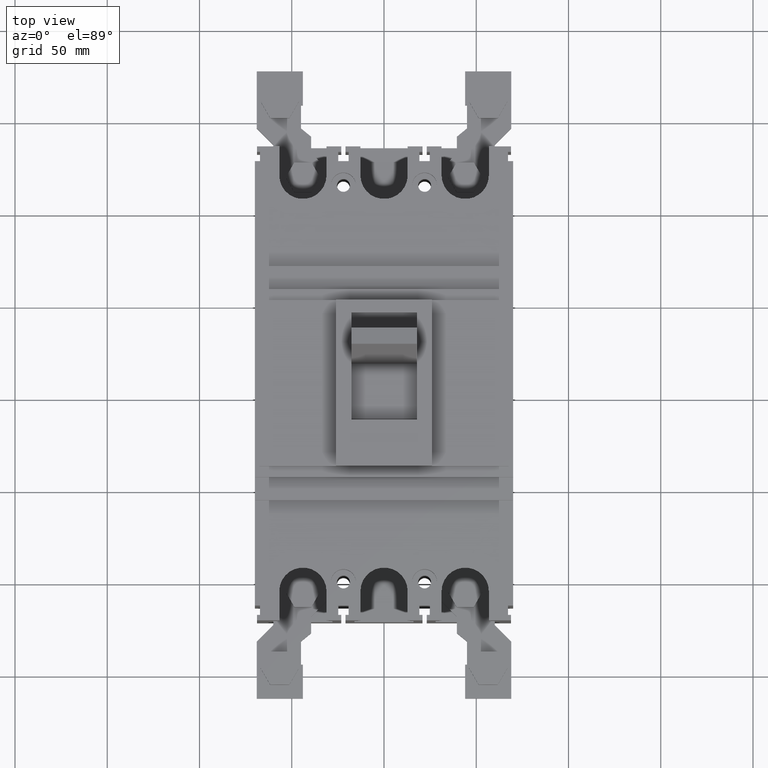
[diagram: clean part render]
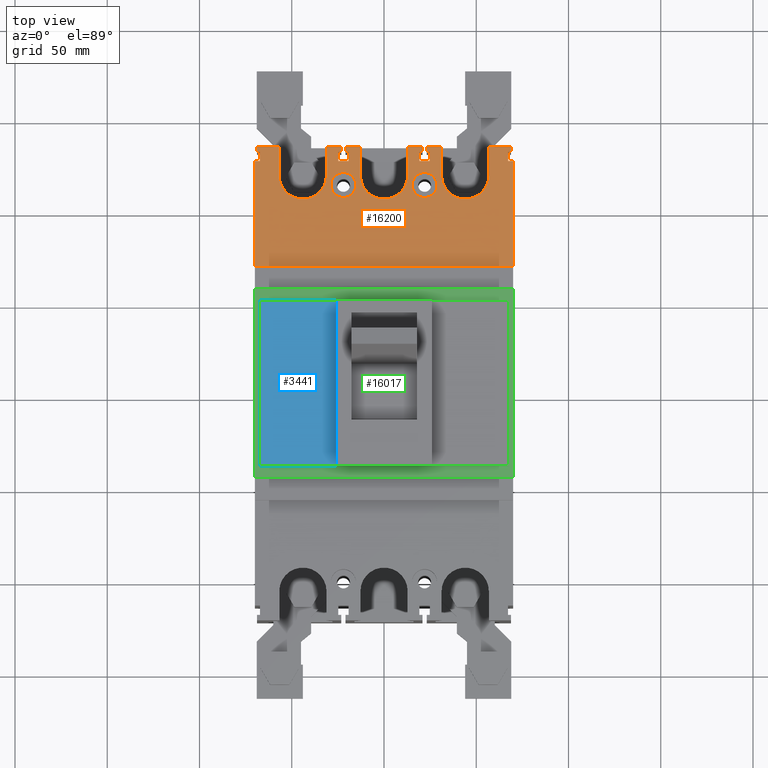
[diagram: same view with three faces highlighted in distinct colors, each labeled with its STEP entity id]
A machine part, top view with three faces highlighted in distinct colors.
Their STEP definitions:

[orange] entity #16200 — the highlighted planar face has unit normal (0, -0, 1).
#230 = VERTEX_POINT ( 'NONE', #14830 ) ;
#292 = DIRECTION ( 'NONE',  ( 1.000000000000000000, 0.0000000000000000000, -0.0000000000000000000 ) ) ;
#305 = CARTESIAN_POINT ( 'NONE',  ( -1.131889763779527547, 8.464566929133859219, 3.720472440944881942 ) ) ;
#312 = LINE ( 'NONE', #8776, #3745 ) ;
#461 = CARTESIAN_POINT ( 'NONE',  ( 0.9763779527559056648, 9.173228346456694382, 3.720472440944881942 ) ) ;
#473 = DIRECTION ( 'NONE',  ( 0.0000000000000000000, 1.000000000000000000, 0.0000000000000000000 ) ) ;
#483 = EDGE_CURVE ( 'NONE', #10848, #15824, #16338, .T. ) ;
#496 = CARTESIAN_POINT ( 'NONE',  ( 2.236220472440944906, 9.291338582677166613, 3.720472440944881942 ) ) ;
#570 = VERTEX_POINT ( 'NONE', #10501 ) ;
#604 = EDGE_CURVE ( 'NONE', #17830, #12579, #9730, .T. ) ;
#610 = CARTESIAN_POINT ( 'NONE',  ( 0.5039370078740157410, 9.291338582677166613, 3.720472440944881942 ) ) ;
#635 = CARTESIAN_POINT ( 'NONE',  ( 2.710629921259842590, 9.173228346456694382, 3.720472440944881942 ) ) ;
#645 = DIRECTION ( 'NONE',  ( 1.000000000000000000, 0.0000000000000000000, 0.0000000000000000000 ) ) ;
#805 = CARTESIAN_POINT ( 'NONE',  ( -0.9114173228346458266, 9.173228346456694382, 3.720472440944881942 ) ) ;
#824 = CIRCLE ( 'NONE', #1689, 0.2657480314960629642 ) ;
#846 = CARTESIAN_POINT ( 'NONE',  ( -0.9114173228346457156, 9.291338582677166613, 3.720472440944881942 ) ) ;
#875 = ORIENTED_EDGE ( 'NONE', *, *, #9297, .T. ) ;
#905 = VERTEX_POINT ( 'NONE', #5955 ) ;
#949 = DIRECTION ( 'NONE',  ( -0.0000000000000000000, -0.0000000000000000000, -1.000000000000000000 ) ) ;
#992 = LINE ( 'NONE', #3590, #12089 ) ;
#996 = VECTOR ( 'NONE', #7927, 39.37007874015748143 ) ;
#1054 = EDGE_CURVE ( 'NONE', #14556, #230, #4516, .T. ) ;
#1074 = ORIENTED_EDGE ( 'NONE', *, *, #4870, .F. ) ;
#1104 = DIRECTION ( 'NONE',  ( 1.000000000000000000, 0.0000000000000000000, -0.0000000000000000000 ) ) ;
#1145 = DIRECTION ( 'NONE',  ( 1.000000000000000000, 0.0000000000000000000, 0.0000000000000000000 ) ) ;
#1181 = CARTESIAN_POINT ( 'NONE',  ( 0.9763779527559056648, 8.976377952755905554, 3.720472440944881942 ) ) ;
#1294 = VECTOR ( 'NONE', #3884, 39.37007874015748143 ) ;
#1316 = DIRECTION ( 'NONE',  ( 1.000000000000000000, 0.0000000000000000000, -0.0000000000000000000 ) ) ;
#1371 = DIRECTION ( 'NONE',  ( 0.0000000000000000000, -1.000000000000000000, -0.0000000000000000000 ) ) ;
#1405 = CARTESIAN_POINT ( 'NONE',  ( -0.7559055118110233895, 8.976377952755905554, 3.720472440944881942 ) ) ;
#1409 = FACE_BOUND ( 'NONE', #4994, .T. ) ;
#1429 = VECTOR ( 'NONE', #9355, 39.37007874015748143 ) ;
#1491 = CARTESIAN_POINT ( 'NONE',  ( -1.228346456692913646, 9.291338582677166613, 3.720472440944881942 ) ) ;
#1495 = VERTEX_POINT ( 'NONE', #14561 ) ;
#1548 = EDGE_CURVE ( 'NONE', #15824, #12977, #8500, .T. ) ;
#1580 = CARTESIAN_POINT ( 'NONE',  ( -2.236220472440944462, 9.291338582677166613, 3.720472440944881942 ) ) ;
#1618 = FACE_OUTER_BOUND ( 'NONE', #3187, .T. ) ;
#1632 = VERTEX_POINT ( 'NONE', #305 ) ;
#1689 = AXIS2_PLACEMENT_3D ( 'NONE', #2485, #949, #1145 ) ;
#1705 = CARTESIAN_POINT ( 'NONE',  ( 2.755905511811024056, 9.173228346456694382, 3.720472440944881942 ) ) ;
#1722 = AXIS2_PLACEMENT_3D ( 'NONE', #4938, #6548, #7997 ) ;
#1800 = VECTOR ( 'NONE', #12755, 39.37007874015748143 ) ;
#1841 = ORIENTED_EDGE ( 'NONE', *, *, #10980, .T. ) ;
#1847 = EDGE_CURVE ( 'NONE', #17386, #6352, #7426, .T. ) ;
#1950 = EDGE_CURVE ( 'NONE', #3420, #4039, #7403, .T. ) ;
#2023 = CARTESIAN_POINT ( 'NONE',  ( -0.6003937007874016185, 8.464566929133859219, 3.720472440944881942 ) ) ;
#2031 = DIRECTION ( 'NONE',  ( 1.000000000000000000, 0.0000000000000000000, 0.0000000000000000000 ) ) ;
#2062 = ORIENTED_EDGE ( 'NONE', *, *, #1950, .T. ) ;
#2069 = CARTESIAN_POINT ( 'NONE',  ( -2.755905511811024056, 8.976377952755905554, 3.720472440944881942 ) ) ;
#2285 = CARTESIAN_POINT ( 'NONE',  ( -0.8208661417322835607, 9.173228346456694382, 3.720472440944881942 ) ) ;
#2344 = LINE ( 'NONE', #1181, #15461 ) ;
#2485 = CARTESIAN_POINT ( 'NONE',  ( -0.8661417322834645827, 8.464566929133859219, 3.720472440944881942 ) ) ;
#2747 = VECTOR ( 'NONE', #1104, 39.37007874015748143 ) ;
#2761 = DIRECTION ( 'NONE',  ( -0.0000000000000000000, -1.000000000000000000, -0.0000000000000000000 ) ) ;
#2965 = ORIENTED_EDGE ( 'NONE', *, *, #7937, .F. ) ;
#3010 = AXIS2_PLACEMENT_3D ( 'NONE', #9157, #6202, #2031 ) ;
#3187 = EDGE_LOOP ( 'NONE', ( #12069, #17454, #13082, #5182, #7128, #12037, #12455, #9106, #6131, #14357, #14523, #7655, #10458, #6532, #875, #15857, #7147, #16023, #9917, #2965, #9239, #1841, #16272, #3306, #11792, #11055, #13236, #1074, #7237, #3235, #13133, #10346, #18014, #2062, #6110, #15977, #16970, #7151, #9461, #12759 ) ) ;
#3197 = CARTESIAN_POINT ( 'NONE',  ( 2.755905511811024056, 9.173228346456694382, 3.720472440944881942 ) ) ;
#3235 = ORIENTED_EDGE ( 'NONE', *, *, #13540, .T. ) ;
#3306 = ORIENTED_EDGE ( 'NONE', *, *, #13376, .T. ) ;
#3402 = DIRECTION ( 'NONE',  ( -0.0000000000000000000, -0.0000000000000000000, -1.000000000000000000 ) ) ;
#3420 = VERTEX_POINT ( 'NONE', #9702 ) ;
#3488 = LINE ( 'NONE', #8387, #6599 ) ;
#3590 = CARTESIAN_POINT ( 'NONE',  ( 0.8208661417322835607, 9.291338582677166613, 3.720472440944881942 ) ) ;
#3616 = CIRCLE ( 'NONE', #16385, 0.2657480314960629642 ) ;
#3743 = VECTOR ( 'NONE', #10941, 39.37007874015748143 ) ;
#3745 = VECTOR ( 'NONE', #15727, 39.37007874015748143 ) ;
#3884 = DIRECTION ( 'NONE',  ( 1.000000000000000000, 0.0000000000000000000, -0.0000000000000000000 ) ) ;
#3916 = EDGE_CURVE ( 'NONE', #8360, #10196, #3616, .T. ) ;
#3925 = VECTOR ( 'NONE', #7179, 39.37007874015748143 ) ;
#3980 = DIRECTION ( 'NONE',  ( 1.000000000000000000, 0.0000000000000000000, 0.0000000000000000000 ) ) ;
#4013 = DIRECTION ( 'NONE',  ( -2.368475785867000094E-15, -1.000000000000000000, -0.0000000000000000000 ) ) ;
#4023 = VERTEX_POINT ( 'NONE', #5947 ) ;
#4039 = VERTEX_POINT ( 'NONE', #5819 ) ;
#4045 = DIRECTION ( 'NONE',  ( -0.0000000000000000000, -0.0000000000000000000, -1.000000000000000000 ) ) ;
#4087 = CARTESIAN_POINT ( 'NONE',  ( 0.7559055118110236116, 8.976377952755905554, 3.720472440944881942 ) ) ;
#4122 = EDGE_CURVE ( 'NONE', #8123, #10848, #13536, .T. ) ;
#4198 = CARTESIAN_POINT ( 'NONE',  ( -0.9763779527559056648, 8.976377952755905554, 3.720472440944881942 ) ) ;
#4319 = CARTESIAN_POINT ( 'NONE',  ( 2.755905511811024056, 9.173228346456694382, 3.720472440944881942 ) ) ;
#4439 = EDGE_CURVE ( 'NONE', #8226, #11257, #16043, .T. ) ;
#4516 = LINE ( 'NONE', #4760, #17621 ) ;
#4544 = VERTEX_POINT ( 'NONE', #635 ) ;
#4566 = CARTESIAN_POINT ( 'NONE',  ( -0.9763779527559056648, 9.173228346456694382, 3.720472440944881942 ) ) ;
#4575 = CARTESIAN_POINT ( 'NONE',  ( -2.755905511811024056, 6.732283464566929609, 3.720472440944881942 ) ) ;
#4600 = DIRECTION ( 'NONE',  ( 1.000000000000000000, 0.0000000000000000000, -0.0000000000000000000 ) ) ;
#4653 = AXIS2_PLACEMENT_3D ( 'NONE', #11570, #17716, #14725 ) ;
#4760 = CARTESIAN_POINT ( 'NONE',  ( -0.5039370078740159631, 9.291338582677166613, 3.720472440944881942 ) ) ;
#4870 = EDGE_CURVE ( 'NONE', #14245, #9754, #14381, .T. ) ;
#4880 = EDGE_CURVE ( 'NONE', #12579, #11005, #17108, .T. ) ;
#4938 = CARTESIAN_POINT ( 'NONE',  ( 2.755905511811024056, 9.291338582677166613, 3.720472440944881942 ) ) ;
#4957 = LINE ( 'NONE', #4566, #12167 ) ;
#4994 = EDGE_LOOP ( 'NONE', ( #6069, #17924 ) ) ;
#5012 = EDGE_CURVE ( 'NONE', #10196, #8360, #7135, .T. ) ;
#5031 = DIRECTION ( 'NONE',  ( 0.0000000000000000000, 1.000000000000000000, -0.0000000000000000000 ) ) ;
#5139 = CARTESIAN_POINT ( 'NONE',  ( 2.645669291338583307, 9.173228346456694382, 3.720472440944881942 ) ) ;
#5146 = VECTOR ( 'NONE', #17202, 39.37007874015748143 ) ;
#5182 = ORIENTED_EDGE ( 'NONE', *, *, #16354, .F. ) ;
#5232 = EDGE_CURVE ( 'NONE', #8226, #12118, #12727, .T. ) ;
#5323 = CARTESIAN_POINT ( 'NONE',  ( 2.755905511811024056, 8.976377952755905554, 3.720472440944881942 ) ) ;
#5372 = EDGE_CURVE ( 'NONE', #16078, #8123, #2344, .T. ) ;
#5515 = VECTOR ( 'NONE', #5774, 39.37007874015748143 ) ;
#5601 = CARTESIAN_POINT ( 'NONE',  ( 1.228346456692913424, 9.291338582677166613, 3.720472440944881942 ) ) ;
#5616 = VECTOR ( 'NONE', #5031, 39.37007874015748143 ) ;
#5645 = DIRECTION ( 'NONE',  ( 1.000000000000000000, 0.0000000000000000000, -0.0000000000000000000 ) ) ;
#5653 = VERTEX_POINT ( 'NONE', #11592 ) ;
#5669 = CARTESIAN_POINT ( 'NONE',  ( 2.755905511811024056, 9.291338582677166613, 3.720472440944881942 ) ) ;
#5699 = EDGE_CURVE ( 'NONE', #9936, #5653, #11203, .T. ) ;
#5767 = CARTESIAN_POINT ( 'NONE',  ( 2.755905511811024056, 9.291338582677166613, 3.720472440944881942 ) ) ;
#5774 = DIRECTION ( 'NONE',  ( -1.000000000000000000, -0.0000000000000000000, -0.0000000000000000000 ) ) ;
#5797 = CARTESIAN_POINT ( 'NONE',  ( 2.645669291338583307, 8.976377952755905554, 3.720472440944881942 ) ) ;
#5819 = CARTESIAN_POINT ( 'NONE',  ( -2.645669291338583307, 9.173228346456694382, 3.720472440944881942 ) ) ;
#5867 = DIRECTION ( 'NONE',  ( -0.0000000000000000000, -1.000000000000000000, -0.0000000000000000000 ) ) ;
#5947 = CARTESIAN_POINT ( 'NONE',  ( 2.645669291338583307, 9.173228346456694382, 3.720472440944881942 ) ) ;
#5952 = CARTESIAN_POINT ( 'NONE',  ( 0.5039370078740157410, 8.669291338582677753, 3.720472440944881942 ) ) ;
#5955 = CARTESIAN_POINT ( 'NONE',  ( 1.228346456692913424, 9.291338582677166613, 3.720472440944881942 ) ) ;
#5973 = DIRECTION ( 'NONE',  ( 1.000000000000000000, 0.0000000000000000000, -0.0000000000000000000 ) ) ;
#5995 = DIRECTION ( 'NONE',  ( 0.0000000000000000000, 1.000000000000000000, -0.0000000000000000000 ) ) ;
#6030 = VECTOR ( 'NONE', #4600, 39.37007874015748143 ) ;
#6069 = ORIENTED_EDGE ( 'NONE', *, *, #15319, .T. ) ;
#6110 = ORIENTED_EDGE ( 'NONE', *, *, #9847, .T. ) ;
#6131 = ORIENTED_EDGE ( 'NONE', *, *, #9448, .T. ) ;
#6202 = DIRECTION ( 'NONE',  ( -0.0000000000000000000, -0.0000000000000000000, -1.000000000000000000 ) ) ;
#6227 = DIRECTION ( 'NONE',  ( -0.0000000000000000000, -0.0000000000000000000, -1.000000000000000000 ) ) ;
#6326 = AXIS2_PLACEMENT_3D ( 'NONE', #13672, #4045, #3980 ) ;
#6352 = VERTEX_POINT ( 'NONE', #14099 ) ;
#6355 = ORIENTED_EDGE ( 'NONE', *, *, #3916, .T. ) ;
#6532 = ORIENTED_EDGE ( 'NONE', *, *, #1548, .T. ) ;
#6548 = DIRECTION ( 'NONE',  ( 0.0000000000000000000, -0.0000000000000000000, 1.000000000000000000 ) ) ;
#6599 = VECTOR ( 'NONE', #17517, 39.37007874015748143 ) ;
#6639 = CARTESIAN_POINT ( 'NONE',  ( 0.9114173228346457156, 9.173228346456694382, 3.720472440944881942 ) ) ;
#6709 = CARTESIAN_POINT ( 'NONE',  ( 0.5039370078740157410, 9.291338582677166613, 3.720472440944881942 ) ) ;
#6767 = EDGE_CURVE ( 'NONE', #18540, #16078, #17613, .T. ) ;
#6843 = CARTESIAN_POINT ( 'NONE',  ( 0.8661417322834645827, 8.464566929133859219, 3.720472440944881942 ) ) ;
#6861 = EDGE_CURVE ( 'NONE', #570, #14468, #8299, .T. ) ;
#6920 = VECTOR ( 'NONE', #18508, 39.37007874015748143 ) ;
#6932 = CARTESIAN_POINT ( 'NONE',  ( -1.228346456692913646, 9.291338582677166613, 3.720472440944881942 ) ) ;
#6960 = VECTOR ( 'NONE', #4013, 39.37007874015748143 ) ;
#7128 = ORIENTED_EDGE ( 'NONE', *, *, #15152, .T. ) ;
#7135 = CIRCLE ( 'NONE', #4653, 0.2657480314960629642 ) ;
#7147 = ORIENTED_EDGE ( 'NONE', *, *, #5232, .T. ) ;
#7151 = ORIENTED_EDGE ( 'NONE', *, *, #14756, .F. ) ;
#7179 = DIRECTION ( 'NONE',  ( 1.000000000000000000, 0.0000000000000000000, -0.0000000000000000000 ) ) ;
#7223 = CIRCLE ( 'NONE', #14888, 0.2657480314960629642 ) ;
#7237 = ORIENTED_EDGE ( 'NONE', *, *, #14979, .T. ) ;
#7263 = CARTESIAN_POINT ( 'NONE',  ( -2.645669291338583307, 8.976377952755905554, 3.720472440944881942 ) ) ;
#7269 = CARTESIAN_POINT ( 'NONE',  ( 0.7559055118110233895, 8.976377952755905554, 3.720472440944881942 ) ) ;
#7403 = LINE ( 'NONE', #4319, #5146 ) ;
#7407 = EDGE_CURVE ( 'NONE', #16545, #18524, #312, .T. ) ;
#7426 = LINE ( 'NONE', #2285, #6960 ) ;
#7486 = CARTESIAN_POINT ( 'NONE',  ( -0.9114173228346458266, 9.291338582677166613, 3.720472440944881942 ) ) ;
#7495 = LINE ( 'NONE', #9551, #2747 ) ;
#7521 = CARTESIAN_POINT ( 'NONE',  ( -2.755905511811024056, 6.732283464566929609, 3.720472440944881942 ) ) ;
#7594 = VECTOR ( 'NONE', #5645, 39.37007874015748143 ) ;
#7655 = ORIENTED_EDGE ( 'NONE', *, *, #4122, .T. ) ;
#7673 = CARTESIAN_POINT ( 'NONE',  ( -2.645669291338583307, 8.976377952755905554, 3.720472440944881942 ) ) ;
#7734 = DIRECTION ( 'NONE',  ( 0.0000000000000000000, -1.000000000000000000, -0.0000000000000000000 ) ) ;
#7818 = CARTESIAN_POINT ( 'NONE',  ( -0.8661417322834645827, 8.464566929133859219, 3.720472440944881942 ) ) ;
#7864 = VECTOR ( 'NONE', #1316, 39.37007874015748143 ) ;
#7899 = VERTEX_POINT ( 'NONE', #5797 ) ;
#7927 = DIRECTION ( 'NONE',  ( 0.0000000000000000000, -1.000000000000000000, -0.0000000000000000000 ) ) ;
#7937 = EDGE_CURVE ( 'NONE', #17386, #230, #17943, .T. ) ;
#7997 = DIRECTION ( 'NONE',  ( 1.000000000000000000, 0.0000000000000000000, -0.0000000000000000000 ) ) ;
#8065 = VERTEX_POINT ( 'NONE', #10492 ) ;
#8108 = EDGE_CURVE ( 'NONE', #12118, #14556, #17167, .T. ) ;
#8123 = VERTEX_POINT ( 'NONE', #16651 ) ;
#8132 = VERTEX_POINT ( 'NONE', #15123 ) ;
#8226 = VERTEX_POINT ( 'NONE', #6709 ) ;
#8273 = VECTOR ( 'NONE', #15809, 39.37007874015748143 ) ;
#8299 = LINE ( 'NONE', #14273, #7864 ) ;
#8337 = VECTOR ( 'NONE', #5973, 39.37007874015748143 ) ;
#8360 = VERTEX_POINT ( 'NONE', #18563 ) ;
#8361 = VERTEX_POINT ( 'NONE', #8414 ) ;
#8387 = CARTESIAN_POINT ( 'NONE',  ( 2.710629921259842590, 9.291338582677166613, 3.720472440944881942 ) ) ;
#8414 = CARTESIAN_POINT ( 'NONE',  ( -1.228346456692913424, 8.669291338582677753, 3.720472440944881942 ) ) ;
#8430 = DIRECTION ( 'NONE',  ( 0.0000000000000000000, 1.000000000000000000, 0.0000000000000000000 ) ) ;
#8444 = EDGE_CURVE ( 'NONE', #1495, #14832, #9191, .T. ) ;
#8445 = DIRECTION ( 'NONE',  ( -0.0000000000000000000, -1.000000000000000000, -0.0000000000000000000 ) ) ;
#8474 = CARTESIAN_POINT ( 'NONE',  ( 2.755905511811024056, 9.291338582677166613, 3.720472440944881942 ) ) ;
#8480 = VERTEX_POINT ( 'NONE', #14347 ) ;
#8500 = LINE ( 'NONE', #8994, #6030 ) ;
#8600 = CARTESIAN_POINT ( 'NONE',  ( -2.755905511811024056, 0.0000000000000000000, 3.720472440944881942 ) ) ;
#8601 = VERTEX_POINT ( 'NONE', #11581 ) ;
#8776 = CARTESIAN_POINT ( 'NONE',  ( -0.7559055118110236116, 8.976377952755905554, 3.720472440944881942 ) ) ;
#8823 = VECTOR ( 'NONE', #13124, 39.37007874015748143 ) ;
#8844 = VECTOR ( 'NONE', #16305, 39.37007874015748143 ) ;
#8900 = EDGE_CURVE ( 'NONE', #16442, #14399, #15953, .T. ) ;
#8994 = CARTESIAN_POINT ( 'NONE',  ( 2.755905511811024056, 9.173228346456694382, 3.720472440944881942 ) ) ;
#9011 = DIRECTION ( 'NONE',  ( 0.0000000000000000000, 1.000000000000000000, -0.0000000000000000000 ) ) ;
#9106 = ORIENTED_EDGE ( 'NONE', *, *, #18486, .F. ) ;
#9157 = CARTESIAN_POINT ( 'NONE',  ( -1.732283464566929165, 8.669291338582677753, 3.720472440944881942 ) ) ;
#9191 = LINE ( 'NONE', #8474, #6920 ) ;
#9203 = LINE ( 'NONE', #13832, #16006 ) ;
#9236 = LINE ( 'NONE', #10442, #16718 ) ;
#9239 = ORIENTED_EDGE ( 'NONE', *, *, #1847, .T. ) ;
#9297 = EDGE_CURVE ( 'NONE', #12977, #11257, #992, .T. ) ;
#9355 = DIRECTION ( 'NONE',  ( 2.368475785867000094E-15, -1.000000000000000000, -0.0000000000000000000 ) ) ;
#9388 = VECTOR ( 'NONE', #17468, 39.37007874015748143 ) ;
#9448 = EDGE_CURVE ( 'NONE', #8065, #18540, #18181, .T. ) ;
#9461 = ORIENTED_EDGE ( 'NONE', *, *, #5699, .F. ) ;
#9551 = CARTESIAN_POINT ( 'NONE',  ( 2.755905511811024056, 9.291338582677166613, 3.720472440944881942 ) ) ;
#9702 = CARTESIAN_POINT ( 'NONE',  ( -2.710629921259842590, 9.173228346456694382, 3.720472440944881942 ) ) ;
#9730 = LINE ( 'NONE', #2069, #8844 ) ;
#9754 = VERTEX_POINT ( 'NONE', #7486 ) ;
#9842 = VECTOR ( 'NONE', #2761, 39.37007874015748143 ) ;
#9847 = EDGE_CURVE ( 'NONE', #4039, #17830, #16591, .T. ) ;
#9889 = VERTEX_POINT ( 'NONE', #496 ) ;
#9917 = ORIENTED_EDGE ( 'NONE', *, *, #1054, .T. ) ;
#9936 = VERTEX_POINT ( 'NONE', #5323 ) ;
#10196 = VERTEX_POINT ( 'NONE', #14029 ) ;
#10199 = CARTESIAN_POINT ( 'NONE',  ( 0.7559055118110236116, 9.173228346456694382, 3.720472440944881942 ) ) ;
#10224 = LINE ( 'NONE', #3197, #11831 ) ;
#10226 = VECTOR ( 'NONE', #7734, 39.37007874015748143 ) ;
#10329 = DIRECTION ( 'NONE',  ( -1.000000000000000000, -0.0000000000000000000, -0.0000000000000000000 ) ) ;
#10338 = LINE ( 'NONE', #5139, #5616 ) ;
#10346 = ORIENTED_EDGE ( 'NONE', *, *, #8444, .F. ) ;
#10425 = CARTESIAN_POINT ( 'NONE',  ( -0.7559055118110233895, 9.173228346456694382, 3.720472440944881942 ) ) ;
#10442 = CARTESIAN_POINT ( 'NONE',  ( 2.645669291338583307, 8.976377952755905554, 3.720472440944881942 ) ) ;
#10458 = ORIENTED_EDGE ( 'NONE', *, *, #483, .T. ) ;
#10492 = CARTESIAN_POINT ( 'NONE',  ( 0.9114173228346456046, 9.291338582677166613, 3.720472440944881942 ) ) ;
#10501 = CARTESIAN_POINT ( 'NONE',  ( -0.9763779527559056648, 9.173228346456694382, 3.720472440944881942 ) ) ;
#10515 = VECTOR ( 'NONE', #11494, 39.37007874015748143 ) ;
#10679 = DIRECTION ( 'NONE',  ( 1.000000000000000000, 0.0000000000000000000, 0.0000000000000000000 ) ) ;
#10686 = VECTOR ( 'NONE', #5867, 39.37007874015748143 ) ;
#10848 = VERTEX_POINT ( 'NONE', #7269 ) ;
#10872 = CARTESIAN_POINT ( 'NONE',  ( 0.8208661417322835607, 9.291338582677166613, 3.720472440944881942 ) ) ;
#10941 = DIRECTION ( 'NONE',  ( 0.0000000000000000000, 1.000000000000000000, -0.0000000000000000000 ) ) ;
#10980 = EDGE_CURVE ( 'NONE', #6352, #16545, #13102, .T. ) ;
#11005 = VERTEX_POINT ( 'NONE', #7521 ) ;
#11021 = CARTESIAN_POINT ( 'NONE',  ( 0.7559055118110233895, 9.173228346456694382, 3.720472440944881942 ) ) ;
#11055 = ORIENTED_EDGE ( 'NONE', *, *, #6861, .T. ) ;
#11113 = CIRCLE ( 'NONE', #3010, 0.5039370078740157410 ) ;
#11203 = LINE ( 'NONE', #18849, #9842 ) ;
#11235 = CARTESIAN_POINT ( 'NONE',  ( -0.5039370078740157410, 8.669291338582677753, 3.720472440944881942 ) ) ;
#11257 = VERTEX_POINT ( 'NONE', #10872 ) ;
#11264 = DIRECTION ( 'NONE',  ( -0.0000000000000000000, -0.0000000000000000000, -1.000000000000000000 ) ) ;
#11371 = VECTOR ( 'NONE', #12611, 39.37007874015748143 ) ;
#11494 = DIRECTION ( 'NONE',  ( -0.0000000000000000000, -1.000000000000000000, -0.0000000000000000000 ) ) ;
#11570 = CARTESIAN_POINT ( 'NONE',  ( 0.8661417322834645827, 8.464566929133859219, 3.720472440944881942 ) ) ;
#11581 = CARTESIAN_POINT ( 'NONE',  ( 2.710629921259842590, 9.291338582677166613, 3.720472440944881942 ) ) ;
#11592 = CARTESIAN_POINT ( 'NONE',  ( 2.755905511811024056, 6.732283464566929609, 3.720472440944881942 ) ) ;
#11644 = CARTESIAN_POINT ( 'NONE',  ( 0.9114173228346458266, 9.173228346456694382, 3.720472440944881942 ) ) ;
#11740 = CARTESIAN_POINT ( 'NONE',  ( 2.236220472440944906, 9.291338582677166613, 3.720472440944881942 ) ) ;
#11792 = ORIENTED_EDGE ( 'NONE', *, *, #17793, .T. ) ;
#11831 = VECTOR ( 'NONE', #292, 39.37007874015748143 ) ;
#11879 = LINE ( 'NONE', #846, #3743 ) ;
#12037 = ORIENTED_EDGE ( 'NONE', *, *, #8900, .T. ) ;
#12069 = ORIENTED_EDGE ( 'NONE', *, *, #14274, .T. ) ;
#12089 = VECTOR ( 'NONE', #16362, 39.37007874015748143 ) ;
#12118 = VERTEX_POINT ( 'NONE', #5952 ) ;
#12167 = VECTOR ( 'NONE', #5995, 39.37007874015748143 ) ;
#12297 = LINE ( 'NONE', #16649, #996 ) ;
#12323 = LINE ( 'NONE', #5669, #7594 ) ;
#12343 = LINE ( 'NONE', #4575, #9388 ) ;
#12413 = EDGE_CURVE ( 'NONE', #14468, #9754, #11879, .T. ) ;
#12455 = ORIENTED_EDGE ( 'NONE', *, *, #18224, .T. ) ;
#12536 = VECTOR ( 'NONE', #8445, 39.37007874015748143 ) ;
#12579 = VERTEX_POINT ( 'NONE', #15336 ) ;
#12611 = DIRECTION ( 'NONE',  ( -0.0000000000000000000, -1.000000000000000000, -0.0000000000000000000 ) ) ;
#12712 = LINE ( 'NONE', #4198, #5515 ) ;
#12727 = LINE ( 'NONE', #610, #11371 ) ;
#12753 = VECTOR ( 'NONE', #8430, 39.37007874015748143 ) ;
#12755 = DIRECTION ( 'NONE',  ( -1.000000000000000000, -0.0000000000000000000, -0.0000000000000000000 ) ) ;
#12759 = ORIENTED_EDGE ( 'NONE', *, *, #14119, .T. ) ;
#12977 = VERTEX_POINT ( 'NONE', #14750 ) ;
#13082 = ORIENTED_EDGE ( 'NONE', *, *, #15918, .T. ) ;
#13102 = LINE ( 'NONE', #1705, #8823 ) ;
#13121 = EDGE_CURVE ( 'NONE', #1495, #3420, #12297, .T. ) ;
#13124 = DIRECTION ( 'NONE',  ( 1.000000000000000000, 0.0000000000000000000, -0.0000000000000000000 ) ) ;
#13133 = ORIENTED_EDGE ( 'NONE', *, *, #16832, .T. ) ;
#13236 = ORIENTED_EDGE ( 'NONE', *, *, #12413, .T. ) ;
#13376 = EDGE_CURVE ( 'NONE', #18524, #8132, #12712, .T. ) ;
#13397 = ORIENTED_EDGE ( 'NONE', *, *, #5012, .T. ) ;
#13472 = EDGE_CURVE ( 'NONE', #4023, #4544, #10224, .T. ) ;
#13536 = LINE ( 'NONE', #4087, #1800 ) ;
#13540 = EDGE_CURVE ( 'NONE', #8361, #8480, #11113, .T. ) ;
#13630 = CARTESIAN_POINT ( 'NONE',  ( -0.8208661417322835607, 9.291338582677166613, 3.720472440944881942 ) ) ;
#13672 = CARTESIAN_POINT ( 'NONE',  ( 1.732283464566929165, 8.669291338582677753, 3.720472440944881942 ) ) ;
#13832 = CARTESIAN_POINT ( 'NONE',  ( -2.236220472440944462, 9.291338582677166613, 3.720472440944881942 ) ) ;
#13893 = DIRECTION ( 'NONE',  ( 0.0000000000000000000, 1.000000000000000000, 0.0000000000000000000 ) ) ;
#14008 = CARTESIAN_POINT ( 'NONE',  ( 1.228346456692913424, 8.669291338582677753, 3.720472440944881942 ) ) ;
#14020 = VECTOR ( 'NONE', #9011, 39.37007874015748143 ) ;
#14029 = CARTESIAN_POINT ( 'NONE',  ( 1.131889763779527547, 8.464566929133859219, 3.720472440944881942 ) ) ;
#14099 = CARTESIAN_POINT ( 'NONE',  ( -0.8208661417322836718, 9.173228346456694382, 3.720472440944881942 ) ) ;
#14119 = EDGE_CURVE ( 'NONE', #9936, #7899, #9236, .T. ) ;
#14245 = VERTEX_POINT ( 'NONE', #1491 ) ;
#14273 = CARTESIAN_POINT ( 'NONE',  ( 2.755905511811024056, 9.173228346456694382, 3.720472440944881942 ) ) ;
#14274 = EDGE_CURVE ( 'NONE', #7899, #4023, #10338, .T. ) ;
#14347 = CARTESIAN_POINT ( 'NONE',  ( -2.236220472440944462, 8.669291338582677753, 3.720472440944881942 ) ) ;
#14357 = ORIENTED_EDGE ( 'NONE', *, *, #6767, .T. ) ;
#14368 = CARTESIAN_POINT ( 'NONE',  ( 2.755905511811024056, 9.291338582677166613, 3.720472440944881942 ) ) ;
#14381 = LINE ( 'NONE', #5767, #8273 ) ;
#14399 = VERTEX_POINT ( 'NONE', #14008 ) ;
#14468 = VERTEX_POINT ( 'NONE', #805 ) ;
#14523 = ORIENTED_EDGE ( 'NONE', *, *, #5372, .T. ) ;
#14556 = VERTEX_POINT ( 'NONE', #11235 ) ;
#14561 = CARTESIAN_POINT ( 'NONE',  ( -2.710629921259842590, 9.291338582677166613, 3.720472440944881942 ) ) ;
#14573 = LINE ( 'NONE', #11740, #10686 ) ;
#14725 = DIRECTION ( 'NONE',  ( 1.000000000000000000, 0.0000000000000000000, 0.0000000000000000000 ) ) ;
#14750 = CARTESIAN_POINT ( 'NONE',  ( 0.8208661417322835607, 9.173228346456694382, 3.720472440944881942 ) ) ;
#14756 = EDGE_CURVE ( 'NONE', #5653, #11005, #12343, .T. ) ;
#14775 = DIRECTION ( 'NONE',  ( 1.000000000000000000, 0.0000000000000000000, 0.0000000000000000000 ) ) ;
#14830 = CARTESIAN_POINT ( 'NONE',  ( -0.5039370078740159631, 9.291338582677166613, 3.720472440944881942 ) ) ;
#14832 = VERTEX_POINT ( 'NONE', #1580 ) ;
#14871 = AXIS2_PLACEMENT_3D ( 'NONE', #15002, #3402, #645 ) ;
#14888 = AXIS2_PLACEMENT_3D ( 'NONE', #7818, #6227, #10679 ) ;
#14889 = VERTEX_POINT ( 'NONE', #2023 ) ;
#14951 = FACE_BOUND ( 'NONE', #16981, .T. ) ;
#14979 = EDGE_CURVE ( 'NONE', #14245, #8361, #18460, .T. ) ;
#15002 = CARTESIAN_POINT ( 'NONE',  ( 0.0000000000000000000, 8.669291338582677753, 3.720472440944881942 ) ) ;
#15123 = CARTESIAN_POINT ( 'NONE',  ( -0.9763779527559056648, 8.976377952755905554, 3.720472440944881942 ) ) ;
#15152 = EDGE_CURVE ( 'NONE', #9889, #16442, #14573, .T. ) ;
#15319 = EDGE_CURVE ( 'NONE', #14889, #1632, #7223, .T. ) ;
#15336 = CARTESIAN_POINT ( 'NONE',  ( -2.755905511811024056, 8.976377952755905554, 3.720472440944881942 ) ) ;
#15461 = VECTOR ( 'NONE', #1371, 39.37007874015748143 ) ;
#15727 = DIRECTION ( 'NONE',  ( 0.0000000000000000000, -1.000000000000000000, -0.0000000000000000000 ) ) ;
#15809 = DIRECTION ( 'NONE',  ( 1.000000000000000000, 0.0000000000000000000, -0.0000000000000000000 ) ) ;
#15824 = VERTEX_POINT ( 'NONE', #11021 ) ;
#15857 = ORIENTED_EDGE ( 'NONE', *, *, #4439, .F. ) ;
#15918 = EDGE_CURVE ( 'NONE', #4544, #8601, #3488, .T. ) ;
#15953 = CIRCLE ( 'NONE', #6326, 0.5039370078740157410 ) ;
#15977 = ORIENTED_EDGE ( 'NONE', *, *, #604, .T. ) ;
#16006 = VECTOR ( 'NONE', #13893, 39.37007874015748143 ) ;
#16023 = ORIENTED_EDGE ( 'NONE', *, *, #8108, .T. ) ;
#16043 = LINE ( 'NONE', #17680, #8337 ) ;
#16078 = VERTEX_POINT ( 'NONE', #461 ) ;
#16200 = ADVANCED_FACE ( 'NONE', ( #1409, #14951, #1618 ), #16503, .T. ) ;
#16272 = ORIENTED_EDGE ( 'NONE', *, *, #7407, .T. ) ;
#16305 = DIRECTION ( 'NONE',  ( -1.000000000000000000, -0.0000000000000000000, -0.0000000000000000000 ) ) ;
#16338 = LINE ( 'NONE', #10199, #14020 ) ;
#16354 = EDGE_CURVE ( 'NONE', #9889, #8601, #7495, .T. ) ;
#16362 = DIRECTION ( 'NONE',  ( 2.368475785867000094E-15, 1.000000000000000000, -0.0000000000000000000 ) ) ;
#16385 = AXIS2_PLACEMENT_3D ( 'NONE', #6843, #11264, #14775 ) ;
#16442 = VERTEX_POINT ( 'NONE', #17237 ) ;
#16503 = PLANE ( 'NONE',  #1722 ) ;
#16545 = VERTEX_POINT ( 'NONE', #10425 ) ;
#16591 = LINE ( 'NONE', #7673, #10226 ) ;
#16649 = CARTESIAN_POINT ( 'NONE',  ( -2.710629921259842590, 9.173228346456694382, 3.720472440944881942 ) ) ;
#16651 = CARTESIAN_POINT ( 'NONE',  ( 0.9763779527559056648, 8.976377952755905554, 3.720472440944881942 ) ) ;
#16718 = VECTOR ( 'NONE', #10329, 39.37007874015748143 ) ;
#16832 = EDGE_CURVE ( 'NONE', #8480, #14832, #9203, .T. ) ;
#16850 = LINE ( 'NONE', #5601, #12753 ) ;
#16911 = EDGE_CURVE ( 'NONE', #1632, #14889, #824, .T. ) ;
#16970 = ORIENTED_EDGE ( 'NONE', *, *, #4880, .T. ) ;
#16981 = EDGE_LOOP ( 'NONE', ( #13397, #6355 ) ) ;
#17108 = LINE ( 'NONE', #8600, #10515 ) ;
#17167 = CIRCLE ( 'NONE', #14871, 0.5039370078740157410 ) ;
#17202 = DIRECTION ( 'NONE',  ( 1.000000000000000000, 0.0000000000000000000, -0.0000000000000000000 ) ) ;
#17237 = CARTESIAN_POINT ( 'NONE',  ( 2.236220472440944906, 8.669291338582677753, 3.720472440944881942 ) ) ;
#17386 = VERTEX_POINT ( 'NONE', #13630 ) ;
#17454 = ORIENTED_EDGE ( 'NONE', *, *, #13472, .T. ) ;
#17468 = DIRECTION ( 'NONE',  ( -1.000000000000000000, 0.0000000000000000000, -0.0000000000000000000 ) ) ;
#17517 = DIRECTION ( 'NONE',  ( 0.0000000000000000000, 1.000000000000000000, -0.0000000000000000000 ) ) ;
#17613 = LINE ( 'NONE', #18354, #1294 ) ;
#17621 = VECTOR ( 'NONE', #473, 39.37007874015748143 ) ;
#17680 = CARTESIAN_POINT ( 'NONE',  ( 2.755905511811024056, 9.291338582677166613, 3.720472440944881942 ) ) ;
#17716 = DIRECTION ( 'NONE',  ( -0.0000000000000000000, -0.0000000000000000000, -1.000000000000000000 ) ) ;
#17793 = EDGE_CURVE ( 'NONE', #8132, #570, #4957, .T. ) ;
#17830 = VERTEX_POINT ( 'NONE', #7263 ) ;
#17924 = ORIENTED_EDGE ( 'NONE', *, *, #16911, .T. ) ;
#17943 = LINE ( 'NONE', #14368, #3925 ) ;
#18014 = ORIENTED_EDGE ( 'NONE', *, *, #13121, .T. ) ;
#18181 = LINE ( 'NONE', #6639, #1429 ) ;
#18224 = EDGE_CURVE ( 'NONE', #14399, #905, #16850, .T. ) ;
#18354 = CARTESIAN_POINT ( 'NONE',  ( 2.755905511811024056, 9.173228346456694382, 3.720472440944881942 ) ) ;
#18460 = LINE ( 'NONE', #6932, #12536 ) ;
#18486 = EDGE_CURVE ( 'NONE', #8065, #905, #12323, .T. ) ;
#18508 = DIRECTION ( 'NONE',  ( 1.000000000000000000, 0.0000000000000000000, -0.0000000000000000000 ) ) ;
#18524 = VERTEX_POINT ( 'NONE', #1405 ) ;
#18540 = VERTEX_POINT ( 'NONE', #11644 ) ;
#18563 = CARTESIAN_POINT ( 'NONE',  ( 0.6003937007874015075, 8.464566929133859219, 3.720472440944881942 ) ) ;
#18849 = CARTESIAN_POINT ( 'NONE',  ( 2.755905511811024056, 0.0000000000000000000, 3.720472440944881942 ) ) ;

[blue] entity #3441 — the highlighted planar face has unit normal (0, 0, 1).
#57 = EDGE_CURVE ( 'NONE', #17360, #10166, #12694, .T. ) ;
#88 = DIRECTION ( 'NONE',  ( 1.000000000000000000, -0.0000000000000000000, 0.0000000000000000000 ) ) ;
#437 = LINE ( 'NONE', #10997, #1613 ) ;
#1419 = DIRECTION ( 'NONE',  ( -0.0000000000000000000, 1.000000000000000000, 0.0000000000000000000 ) ) ;
#1613 = VECTOR ( 'NONE', #6782, 39.37007874015748143 ) ;
#2559 = VECTOR ( 'NONE', #88, 39.37007874015748143 ) ;
#2651 = VECTOR ( 'NONE', #1419, 39.37007874015748143 ) ;
#3117 = CARTESIAN_POINT ( 'NONE',  ( -2.657480314960630086, 6.003937007874015741, 4.212598425196850016 ) ) ;
#3441 = ADVANCED_FACE ( 'NONE', ( #7040 ), #4372, .T. ) ;
#3483 = EDGE_CURVE ( 'NONE', #10358, #5836, #5480, .T. ) ;
#3707 = EDGE_CURVE ( 'NONE', #5836, #17360, #437, .T. ) ;
#4348 = CARTESIAN_POINT ( 'NONE',  ( -1.023622047244094668, 0.0000000000000000000, 4.212598425196850016 ) ) ;
#4372 = PLANE ( 'NONE',  #10737 ) ;
#5349 = ORIENTED_EDGE ( 'NONE', *, *, #3483, .F. ) ;
#5480 = LINE ( 'NONE', #15786, #16109 ) ;
#5603 = EDGE_CURVE ( 'NONE', #10358, #10166, #12350, .T. ) ;
#5836 = VERTEX_POINT ( 'NONE', #17248 ) ;
#6782 = DIRECTION ( 'NONE',  ( 0.0000000000000000000, 1.000000000000000000, -0.0000000000000000000 ) ) ;
#7040 = FACE_OUTER_BOUND ( 'NONE', #18621, .T. ) ;
#7255 = DIRECTION ( 'NONE',  ( 1.000000000000000000, 0.0000000000000000000, -0.0000000000000000000 ) ) ;
#7353 = ORIENTED_EDGE ( 'NONE', *, *, #5603, .T. ) ;
#10154 = ORIENTED_EDGE ( 'NONE', *, *, #57, .F. ) ;
#10166 = VERTEX_POINT ( 'NONE', #18442 ) ;
#10358 = VERTEX_POINT ( 'NONE', #11838 ) ;
#10737 = AXIS2_PLACEMENT_3D ( 'NONE', #15917, #15852, #7255 ) ;
#10997 = CARTESIAN_POINT ( 'NONE',  ( -2.657480314960630086, 2.460629921259842590, 4.212598425196850016 ) ) ;
#11838 = CARTESIAN_POINT ( 'NONE',  ( -1.023622047244094668, 2.460629921259842590, 4.212598425196850016 ) ) ;
#12020 = CARTESIAN_POINT ( 'NONE',  ( -2.657480314960630086, 6.003937007874015741, 4.212598425196850016 ) ) ;
#12350 = LINE ( 'NONE', #4348, #2651 ) ;
#12694 = LINE ( 'NONE', #3117, #2559 ) ;
#15786 = CARTESIAN_POINT ( 'NONE',  ( 2.657480314960630086, 2.460629921259842590, 4.212598425196850016 ) ) ;
#15852 = DIRECTION ( 'NONE',  ( 0.0000000000000000000, 0.0000000000000000000, 1.000000000000000000 ) ) ;
#15917 = CARTESIAN_POINT ( 'NONE',  ( 0.0000000000000000000, 0.0000000000000000000, 4.212598425196850016 ) ) ;
#15984 = DIRECTION ( 'NONE',  ( -1.000000000000000000, -0.0000000000000000000, -0.0000000000000000000 ) ) ;
#16109 = VECTOR ( 'NONE', #15984, 39.37007874015748143 ) ;
#16837 = ORIENTED_EDGE ( 'NONE', *, *, #3707, .F. ) ;
#17248 = CARTESIAN_POINT ( 'NONE',  ( -2.657480314960630086, 2.460629921259842590, 4.212598425196850016 ) ) ;
#17360 = VERTEX_POINT ( 'NONE', #12020 ) ;
#18442 = CARTESIAN_POINT ( 'NONE',  ( -1.023622047244094668, 6.003937007874015741, 4.212598425196850016 ) ) ;
#18621 = EDGE_LOOP ( 'NONE', ( #16837, #5349, #7353, #10154 ) ) ;

[green] entity #16017 — the highlighted planar face has unit normal (0, 0, 1).
#408 = CARTESIAN_POINT ( 'NONE',  ( 2.657480314960630086, 0.0000000000000000000, 4.055118110236221263 ) ) ;
#865 = ORIENTED_EDGE ( 'NONE', *, *, #12648, .T. ) ;
#1088 = LINE ( 'NONE', #408, #1306 ) ;
#1157 = EDGE_CURVE ( 'NONE', #3217, #6517, #1088, .T. ) ;
#1306 = VECTOR ( 'NONE', #13618, 39.37007874015748143 ) ;
#1432 = DIRECTION ( 'NONE',  ( -1.000000000000000000, -0.0000000000000000000, 0.0000000000000000000 ) ) ;
#1577 = LINE ( 'NONE', #8420, #7458 ) ;
#1646 = CARTESIAN_POINT ( 'NONE',  ( -2.657480314960630086, 0.0000000000000000000, 4.055118110236221263 ) ) ;
#1740 = EDGE_LOOP ( 'NONE', ( #6774, #865, #6538, #8551 ) ) ;
#1744 = LINE ( 'NONE', #2797, #13025 ) ;
#1930 = ORIENTED_EDGE ( 'NONE', *, *, #1157, .T. ) ;
#2797 = CARTESIAN_POINT ( 'NONE',  ( -2.755905511811024056, 0.0000000000000000000, 4.055118110236221263 ) ) ;
#2964 = CARTESIAN_POINT ( 'NONE',  ( 0.0000000000000000000, 6.240157480314961091, 4.055118110236221263 ) ) ;
#3217 = VERTEX_POINT ( 'NONE', #3433 ) ;
#3426 = VERTEX_POINT ( 'NONE', #15538 ) ;
#3433 = CARTESIAN_POINT ( 'NONE',  ( 2.657480314960630086, 6.003937007874015741, 4.055118110236221263 ) ) ;
#4102 = EDGE_CURVE ( 'NONE', #16979, #3426, #1577, .T. ) ;
#4116 = DIRECTION ( 'NONE',  ( -1.000000000000000000, -0.0000000000000000000, -0.0000000000000000000 ) ) ;
#4507 = DIRECTION ( 'NONE',  ( 0.0000000000000000000, 0.0000000000000000000, 1.000000000000000000 ) ) ;
#4650 = CARTESIAN_POINT ( 'NONE',  ( 0.0000000000000000000, 6.003937007874015741, 4.055118110236221263 ) ) ;
#4656 = EDGE_LOOP ( 'NONE', ( #1930, #16749, #11534, #10912 ) ) ;
#4755 = AXIS2_PLACEMENT_3D ( 'NONE', #11281, #4507, #8843 ) ;
#4855 = EDGE_CURVE ( 'NONE', #16441, #10743, #1744, .T. ) ;
#4879 = CARTESIAN_POINT ( 'NONE',  ( -2.657480314960630086, 2.460629921259842590, 4.055118110236221263 ) ) ;
#5188 = CARTESIAN_POINT ( 'NONE',  ( -2.657480314960630086, 6.003937007874015741, 4.055118110236221263 ) ) ;
#6517 = VERTEX_POINT ( 'NONE', #11781 ) ;
#6538 = ORIENTED_EDGE ( 'NONE', *, *, #4855, .T. ) ;
#6774 = ORIENTED_EDGE ( 'NONE', *, *, #4102, .F. ) ;
#7458 = VECTOR ( 'NONE', #11262, 39.37007874015748143 ) ;
#8417 = VECTOR ( 'NONE', #4116, 39.37007874015748143 ) ;
#8420 = CARTESIAN_POINT ( 'NONE',  ( 2.755905511811024056, 0.0000000000000000000, 4.055118110236221263 ) ) ;
#8551 = ORIENTED_EDGE ( 'NONE', *, *, #16032, .F. ) ;
#8753 = VERTEX_POINT ( 'NONE', #4879 ) ;
#8843 = DIRECTION ( 'NONE',  ( 1.000000000000000000, 0.0000000000000000000, -0.0000000000000000000 ) ) ;
#9441 = CARTESIAN_POINT ( 'NONE',  ( 0.0000000000000000000, 2.460629921259842590, 4.055118110236221263 ) ) ;
#9773 = FACE_BOUND ( 'NONE', #4656, .T. ) ;
#10219 = LINE ( 'NONE', #1646, #13607 ) ;
#10254 = VECTOR ( 'NONE', #1432, 39.37007874015748143 ) ;
#10266 = PLANE ( 'NONE',  #4755 ) ;
#10332 = DIRECTION ( 'NONE',  ( -0.0000000000000000000, 1.000000000000000000, 0.0000000000000000000 ) ) ;
#10454 = EDGE_CURVE ( 'NONE', #15788, #3217, #12274, .T. ) ;
#10743 = VERTEX_POINT ( 'NONE', #15420 ) ;
#10903 = LINE ( 'NONE', #2964, #10254 ) ;
#10912 = ORIENTED_EDGE ( 'NONE', *, *, #10454, .T. ) ;
#11262 = DIRECTION ( 'NONE',  ( -0.0000000000000000000, -1.000000000000000000, -0.0000000000000000000 ) ) ;
#11281 = CARTESIAN_POINT ( 'NONE',  ( 0.0000000000000000000, 0.0000000000000000000, 4.055118110236221263 ) ) ;
#11337 = FACE_OUTER_BOUND ( 'NONE', #1740, .T. ) ;
#11534 = ORIENTED_EDGE ( 'NONE', *, *, #16025, .T. ) ;
#11781 = CARTESIAN_POINT ( 'NONE',  ( 2.657480314960630086, 2.460629921259842590, 4.055118110236221263 ) ) ;
#12251 = DIRECTION ( 'NONE',  ( -1.000000000000000000, -0.0000000000000000000, 0.0000000000000000000 ) ) ;
#12274 = LINE ( 'NONE', #4650, #18175 ) ;
#12385 = EDGE_CURVE ( 'NONE', #6517, #8753, #14340, .T. ) ;
#12648 = EDGE_CURVE ( 'NONE', #16979, #16441, #10903, .T. ) ;
#13025 = VECTOR ( 'NONE', #18679, 39.37007874015748143 ) ;
#13120 = CARTESIAN_POINT ( 'NONE',  ( 2.755905511811024056, 2.224409448818897683, 4.055118110236221263 ) ) ;
#13607 = VECTOR ( 'NONE', #10332, 39.37007874015748143 ) ;
#13618 = DIRECTION ( 'NONE',  ( 0.0000000000000000000, -1.000000000000000000, -0.0000000000000000000 ) ) ;
#14340 = LINE ( 'NONE', #9441, #16845 ) ;
#14617 = DIRECTION ( 'NONE',  ( 1.000000000000000000, 0.0000000000000000000, -0.0000000000000000000 ) ) ;
#15420 = CARTESIAN_POINT ( 'NONE',  ( -2.755905511811024056, 2.224409448818897683, 4.055118110236221263 ) ) ;
#15538 = CARTESIAN_POINT ( 'NONE',  ( 2.755905511811024056, 2.224409448818897683, 4.055118110236221263 ) ) ;
#15788 = VERTEX_POINT ( 'NONE', #5188 ) ;
#16017 = ADVANCED_FACE ( 'NONE', ( #11337, #9773 ), #10266, .T. ) ;
#16025 = EDGE_CURVE ( 'NONE', #8753, #15788, #10219, .T. ) ;
#16032 = EDGE_CURVE ( 'NONE', #3426, #10743, #18635, .T. ) ;
#16441 = VERTEX_POINT ( 'NONE', #17296 ) ;
#16749 = ORIENTED_EDGE ( 'NONE', *, *, #12385, .T. ) ;
#16845 = VECTOR ( 'NONE', #12251, 39.37007874015748143 ) ;
#16979 = VERTEX_POINT ( 'NONE', #18372 ) ;
#17296 = CARTESIAN_POINT ( 'NONE',  ( -2.755905511811024056, 6.240157480314961091, 4.055118110236221263 ) ) ;
#18175 = VECTOR ( 'NONE', #14617, 39.37007874015748143 ) ;
#18372 = CARTESIAN_POINT ( 'NONE',  ( 2.755905511811024056, 6.240157480314961091, 4.055118110236221263 ) ) ;
#18635 = LINE ( 'NONE', #13120, #8417 ) ;
#18679 = DIRECTION ( 'NONE',  ( -0.0000000000000000000, -1.000000000000000000, -0.0000000000000000000 ) ) ;